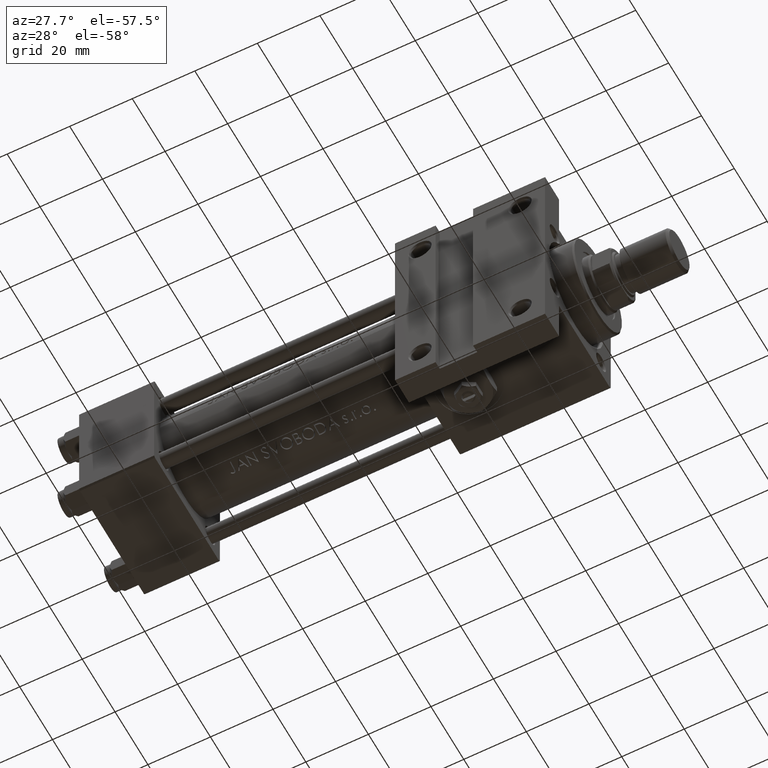
[diagram: clean part render]
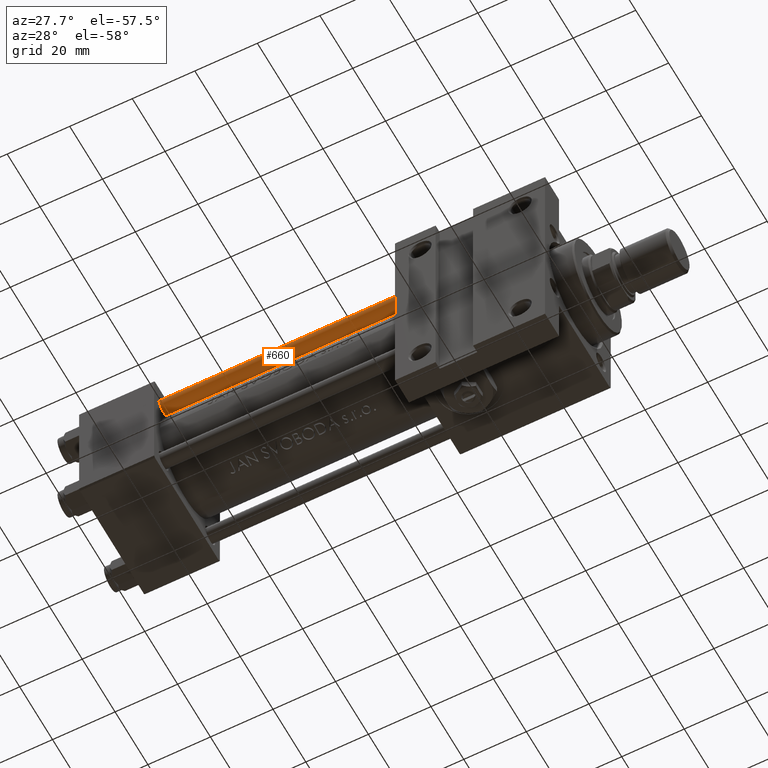
[diagram: same view with one face highlighted and labeled with its STEP entity id]
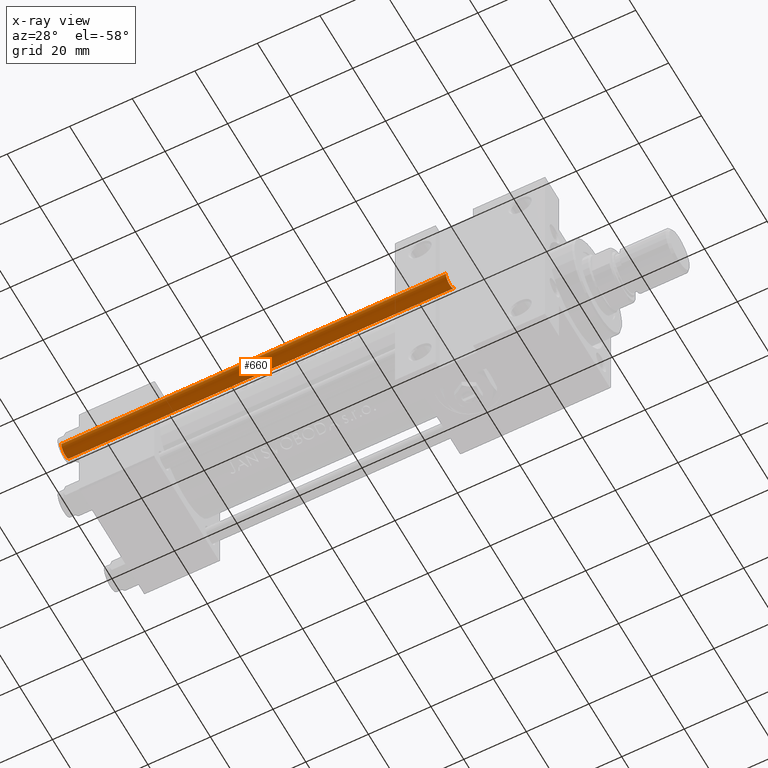
[diagram: x-ray of the same camera — body ghosted, the highlighted face saturated]
A machine part, auxiliary view. The second image highlights one B-rep face of the part: STEP entity #660.
The next image is the same camera in x-ray: the body ghosted, the highlighted face saturated — about 0% of this face is hidden behind the body in this view.
In plain terms, the highlighted cylindrical surface (edge-blend (fillet) strip) has radius 2.5 mm, axis along (-1, 0, 0).
Its self-contained STEP definition (entity closure, byte-faithful):
#153 = FACE_OUTER_BOUND ( 'NONE', #33248, .T. ) ;
#660 = ADVANCED_FACE ( 'NONE', ( #153 ), #15257, .T. ) ;
#1415 = CARTESIAN_POINT ( 'NONE',  ( -2.500000000000000000, 0.000000000000000000, 0.5000000000000004441 ) ) ;
#1441 = VERTEX_POINT ( 'NONE', #45667 ) ;
#1696 = VERTEX_POINT ( 'NONE', #16724 ) ;
#8024 = VECTOR ( 'NONE', #42733, 1000.000000000000000 ) ;
#8730 = DIRECTION ( 'NONE',  ( -0.000000000000000000, -0.000000000000000000, -1.000000000000000000 ) ) ;
#14836 = DIRECTION ( 'NONE',  ( 1.000000000000000000, 0.000000000000000000, 0.000000000000000000 ) ) ;
#15257 = CYLINDRICAL_SURFACE ( 'NONE', #19795, 2.500000000000000000 ) ;
#15558 = VERTEX_POINT ( 'NONE', #1415 ) ;
#16190 = ORIENTED_EDGE ( 'NONE', *, *, #42517, .T. ) ;
#16724 = CARTESIAN_POINT ( 'NONE',  ( -2.500000000000000000, 0.000000000000000000, 123.5000000000000000 ) ) ;
#18551 = DIRECTION ( 'NONE',  ( -1.000000000000000000, 0.000000000000000000, 0.000000000000000000 ) ) ;
#19664 = EDGE_CURVE ( 'NONE', #1441, #15558, #32900, .T. ) ;
#19795 = AXIS2_PLACEMENT_3D ( 'NONE', #38411, #22573, #18551 ) ;
#20612 = EDGE_CURVE ( 'NONE', #35159, #1441, #42477, .T. ) ;
#21648 = CARTESIAN_POINT ( 'NONE',  ( 0.000000000000000000, 0.000000000000000000, 123.5000000000000000 ) ) ;
#22354 = ORIENTED_EDGE ( 'NONE', *, *, #19664, .T. ) ;
#22573 = DIRECTION ( 'NONE',  ( -0.000000000000000000, -0.000000000000000000, -1.000000000000000000 ) ) ;
#25445 = DIRECTION ( 'NONE',  ( 0.000000000000000000, 0.000000000000000000, -1.000000000000000000 ) ) ;
#27695 = EDGE_CURVE ( 'NONE', #1696, #15558, #39677, .T. ) ;
#28684 = CARTESIAN_POINT ( 'NONE',  ( 2.500000000000000000, 3.061616997868383141E-16, 123.5000000000000000 ) ) ;
#32900 = CIRCLE ( 'NONE', #36905, 2.500000000000000000 ) ;
#33248 = EDGE_LOOP ( 'NONE', ( #16190, #46192, #22354, #41055 ) ) ;
#35159 = VERTEX_POINT ( 'NONE', #28684 ) ;
#35904 = CARTESIAN_POINT ( 'NONE',  ( -2.500000000000000000, 0.000000000000000000, 124.0000000000000000 ) ) ;
#36905 = AXIS2_PLACEMENT_3D ( 'NONE', #42719, #39711, #42978 ) ;
#38411 = CARTESIAN_POINT ( 'NONE',  ( 0.000000000000000000, 0.000000000000000000, 124.0000000000000000 ) ) ;
#39677 = LINE ( 'NONE', #35904, #48474 ) ;
#39711 = DIRECTION ( 'NONE',  ( -0.000000000000000000, -0.000000000000000000, 1.000000000000000000 ) ) ;
#40809 = CIRCLE ( 'NONE', #48835, 2.500000000000000000 ) ;
#41055 = ORIENTED_EDGE ( 'NONE', *, *, #27695, .F. ) ;
#42477 = LINE ( 'NONE', #47685, #8024 ) ;
#42517 = EDGE_CURVE ( 'NONE', #1696, #35159, #40809, .T. ) ;
#42719 = CARTESIAN_POINT ( 'NONE',  ( 0.000000000000000000, 0.000000000000000000, 0.5000000000000004441 ) ) ;
#42733 = DIRECTION ( 'NONE',  ( -0.000000000000000000, -0.000000000000000000, -1.000000000000000000 ) ) ;
#42978 = DIRECTION ( 'NONE',  ( 1.000000000000000000, 0.000000000000000000, 0.000000000000000000 ) ) ;
#45667 = CARTESIAN_POINT ( 'NONE',  ( 2.500000000000000000, 3.061616997868383141E-16, 0.5000000000000004441 ) ) ;
#46192 = ORIENTED_EDGE ( 'NONE', *, *, #20612, .T. ) ;
#47685 = CARTESIAN_POINT ( 'NONE',  ( 2.500000000000000000, 3.061616997868383141E-16, 124.0000000000000000 ) ) ;
#48474 = VECTOR ( 'NONE', #8730, 1000.000000000000000 ) ;
#48835 = AXIS2_PLACEMENT_3D ( 'NONE', #21648, #25445, #14836 ) ;